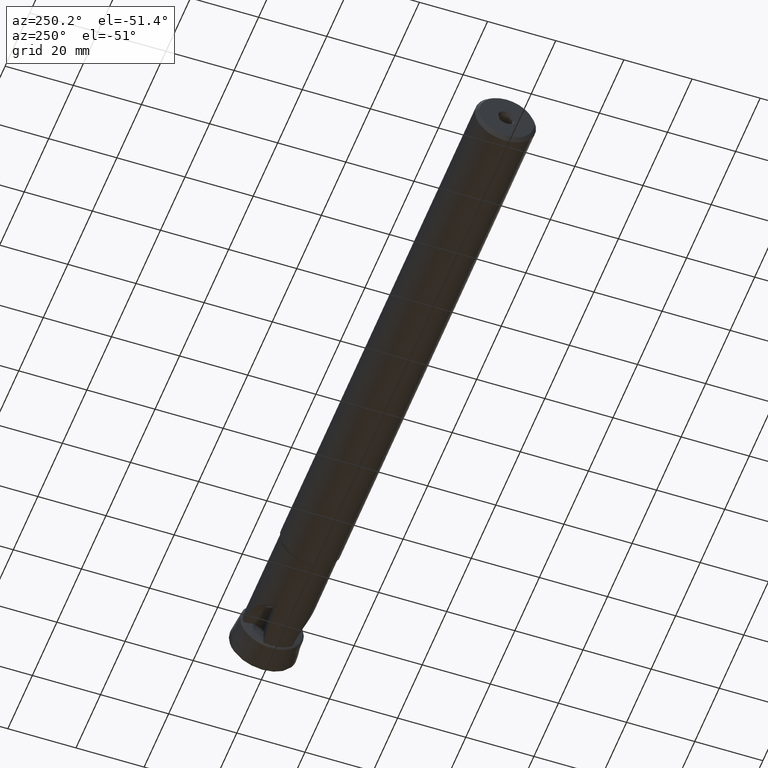
[diagram: clean part render]
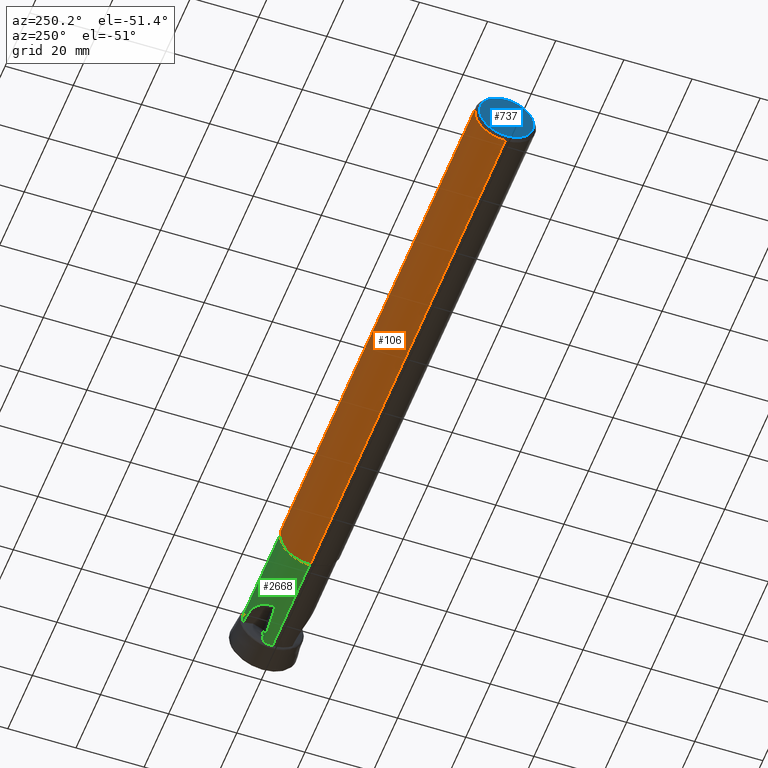
[diagram: same view with three faces highlighted in distinct colors, each labeled with its STEP entity id]
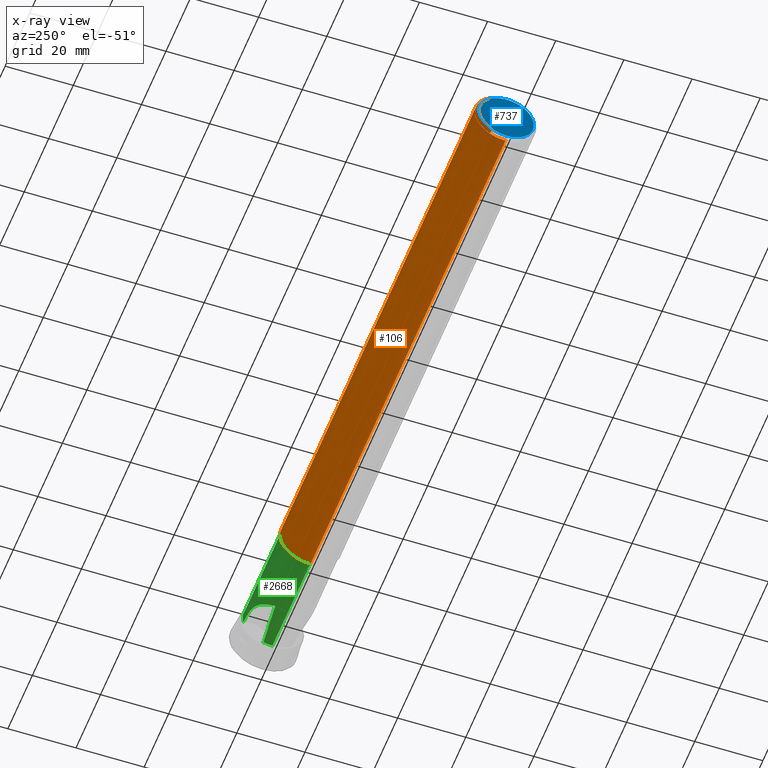
[diagram: x-ray of the same camera — body ghosted, the three highlighted faces saturated]
A machine part, auxiliary view with three faces highlighted in distinct colors.
The next image is the same camera in x-ray (body ghosted, the three faces saturated) — at least one of them is partly hidden behind the body in this view.
Their STEP definitions:

[orange] entity #106 — the highlighted cylindrical surface (edge-blend (fillet) strip) has radius 9 mm, axis along (-1, -0, -0).
#106 = ADVANCED_FACE ( 'NONE', ( #900 ), #4100, .T. ) ;
#266 = CIRCLE ( 'NONE', #432, 9.000000000000000000 ) ;
#290 = VECTOR ( 'NONE', #857, 1000.000000000000000 ) ;
#351 = VERTEX_POINT ( 'NONE', #3531 ) ;
#432 = AXIS2_PLACEMENT_3D ( 'NONE', #3870, #3255, #1993 ) ;
#564 = CARTESIAN_POINT ( 'NONE',  ( 1.000000000000000000, 1.102182119232615500E-015, 8.999999999999982200 ) ) ;
#780 = DIRECTION ( 'NONE',  ( 0.0000000000000000000, 0.0000000000000000000, 1.000000000000000000 ) ) ;
#839 = VECTOR ( 'NONE', #3418, 1000.000000000000000 ) ;
#857 = DIRECTION ( 'NONE',  ( -1.000000000000000000, -0.0000000000000000000, -0.0000000000000000000 ) ) ;
#886 = ORIENTED_EDGE ( 'NONE', *, *, #2553, .T. ) ;
#900 = FACE_OUTER_BOUND ( 'NONE', #3587, .T. ) ;
#1161 = CARTESIAN_POINT ( 'NONE',  ( 0.0000000000000000000, 0.0000000000000000000, 8.999999999999991100 ) ) ;
#1303 = AXIS2_PLACEMENT_3D ( 'NONE', #3076, #3015, #780 ) ;
#1433 = AXIS2_PLACEMENT_3D ( 'NONE', #3495, #1616, #1916 ) ;
#1523 = EDGE_CURVE ( 'NONE', #2541, #3810, #1585, .T. ) ;
#1585 = LINE ( 'NONE', #1161, #290 ) ;
#1616 = DIRECTION ( 'NONE',  ( -1.000000000000000000, -0.0000000000000000000, -0.0000000000000000000 ) ) ;
#1687 = ORIENTED_EDGE ( 'NONE', *, *, #3038, .F. ) ;
#1866 = CARTESIAN_POINT ( 'NONE',  ( 159.8499999999999900, 0.0000000000000000000, 9.000000000000000000 ) ) ;
#1916 = DIRECTION ( 'NONE',  ( 0.0000000000000000000, 0.0000000000000000000, 1.000000000000000000 ) ) ;
#1959 = LINE ( 'NONE', #4080, #839 ) ;
#1968 = VERTEX_POINT ( 'NONE', #4029 ) ;
#1993 = DIRECTION ( 'NONE',  ( 0.0000000000000000000, 0.0000000000000000000, 1.000000000000000000 ) ) ;
#2240 = CIRCLE ( 'NONE', #1433, 8.999999999999982200 ) ;
#2541 = VERTEX_POINT ( 'NONE', #1866 ) ;
#2553 = EDGE_CURVE ( 'NONE', #351, #1968, #1959, .T. ) ;
#3015 = DIRECTION ( 'NONE',  ( -1.000000000000000000, -0.0000000000000000000, -0.0000000000000000000 ) ) ;
#3038 = EDGE_CURVE ( 'NONE', #3810, #1968, #2240, .T. ) ;
#3076 = CARTESIAN_POINT ( 'NONE',  ( 0.0000000000000000000, 0.0000000000000000000, 0.0000000000000000000 ) ) ;
#3118 = EDGE_CURVE ( 'NONE', #2541, #351, #266, .T. ) ;
#3255 = DIRECTION ( 'NONE',  ( -1.000000000000000000, -0.0000000000000000000, -0.0000000000000000000 ) ) ;
#3418 = DIRECTION ( 'NONE',  ( -1.000000000000000000, -0.0000000000000000000, -0.0000000000000000000 ) ) ;
#3495 = CARTESIAN_POINT ( 'NONE',  ( 1.000000000000000000, 0.0000000000000000000, 0.0000000000000000000 ) ) ;
#3531 = CARTESIAN_POINT ( 'NONE',  ( 159.8499999999999900, 1.102182119232617700E-015, -9.000000000000000000 ) ) ;
#3587 = EDGE_LOOP ( 'NONE', ( #3778, #886, #1687, #3975 ) ) ;
#3778 = ORIENTED_EDGE ( 'NONE', *, *, #3118, .T. ) ;
#3810 = VERTEX_POINT ( 'NONE', #564 ) ;
#3870 = CARTESIAN_POINT ( 'NONE',  ( 159.8499999999999900, 0.0000000000000000000, 0.0000000000000000000 ) ) ;
#3975 = ORIENTED_EDGE ( 'NONE', *, *, #1523, .F. ) ;
#4029 = CARTESIAN_POINT ( 'NONE',  ( 1.000000000000000000, 0.0000000000000000000, -8.999999999999982200 ) ) ;
#4080 = CARTESIAN_POINT ( 'NONE',  ( 0.0000000000000000000, 1.102182119232616700E-015, -8.999999999999991100 ) ) ;
#4100 = CYLINDRICAL_SURFACE ( 'NONE', #1303, 8.999999999999991100 ) ;

[blue] entity #737 — the highlighted planar face has unit normal (1, 0, 0).
#36 = ORIENTED_EDGE ( 'NONE', *, *, #873, .T. ) ;
#178 = VERTEX_POINT ( 'NONE', #842 ) ;
#205 = ORIENTED_EDGE ( 'NONE', *, *, #3556, .F. ) ;
#216 = DIRECTION ( 'NONE',  ( -1.000000000000000000, -0.0000000000000000000, -0.0000000000000000000 ) ) ;
#235 = ORIENTED_EDGE ( 'NONE', *, *, #2966, .T. ) ;
#318 = CIRCLE ( 'NONE', #3086, 7.999999999999979600 ) ;
#353 = DIRECTION ( 'NONE',  ( -1.000000000000000000, -0.0000000000000000000, -0.0000000000000000000 ) ) ;
#480 = VERTEX_POINT ( 'NONE', #634 ) ;
#500 = CARTESIAN_POINT ( 'NONE',  ( 0.0000000000000000000, 0.0000000000000000000, 0.0000000000000000000 ) ) ;
#530 = DIRECTION ( 'NONE',  ( 0.0000000000000000000, 0.0000000000000000000, -1.000000000000000000 ) ) ;
#634 = CARTESIAN_POINT ( 'NONE',  ( 0.0000000000000000000, 1.040949779275248000E-015, 7.999999999999979600 ) ) ;
#689 = EDGE_CURVE ( 'NONE', #2187, #2066, #1707, .T. ) ;
#723 = AXIS2_PLACEMENT_3D ( 'NONE', #3072, #1459, #530 ) ;
#737 = ADVANCED_FACE ( 'NONE', ( #3593, #1818 ), #2453, .F. ) ;
#842 = CARTESIAN_POINT ( 'NONE',  ( 0.0000000000000000000, 0.0000000000000000000, -7.999999999999979600 ) ) ;
#846 = CIRCLE ( 'NONE', #1155, 7.999999999999979600 ) ;
#873 = EDGE_CURVE ( 'NONE', #480, #178, #846, .T. ) ;
#948 = CIRCLE ( 'NONE', #2030, 2.577350269189627500 ) ;
#966 = CARTESIAN_POINT ( 'NONE',  ( 0.0000000000000000000, 0.0000000000000000000, 0.0000000000000000000 ) ) ;
#987 = CARTESIAN_POINT ( 'NONE',  ( 0.0000000000000000000, 3.156343757444646200E-016, -2.577350269189627500 ) ) ;
#1155 = AXIS2_PLACEMENT_3D ( 'NONE', #500, #216, #2125 ) ;
#1459 = DIRECTION ( 'NONE',  ( 1.000000000000000000, 0.0000000000000000000, 0.0000000000000000000 ) ) ;
#1707 = CIRCLE ( 'NONE', #3168, 2.577350269189627500 ) ;
#1818 = FACE_OUTER_BOUND ( 'NONE', #2687, .T. ) ;
#1917 = EDGE_LOOP ( 'NONE', ( #205, #2059 ) ) ;
#2030 = AXIS2_PLACEMENT_3D ( 'NONE', #3449, #3474, #4119 ) ;
#2059 = ORIENTED_EDGE ( 'NONE', *, *, #689, .F. ) ;
#2066 = VERTEX_POINT ( 'NONE', #3885 ) ;
#2125 = DIRECTION ( 'NONE',  ( 0.0000000000000000000, 0.0000000000000000000, 1.000000000000000000 ) ) ;
#2187 = VERTEX_POINT ( 'NONE', #987 ) ;
#2258 = DIRECTION ( 'NONE',  ( -1.000000000000000000, -0.0000000000000000000, -0.0000000000000000000 ) ) ;
#2453 = PLANE ( 'NONE',  #723 ) ;
#2687 = EDGE_LOOP ( 'NONE', ( #235, #36 ) ) ;
#2958 = DIRECTION ( 'NONE',  ( 0.0000000000000000000, 0.0000000000000000000, 1.000000000000000000 ) ) ;
#2966 = EDGE_CURVE ( 'NONE', #178, #480, #318, .T. ) ;
#3072 = CARTESIAN_POINT ( 'NONE',  ( 0.0000000000000000000, 0.0000000000000000000, 0.0000000000000000000 ) ) ;
#3086 = AXIS2_PLACEMENT_3D ( 'NONE', #4114, #2258, #3159 ) ;
#3159 = DIRECTION ( 'NONE',  ( 0.0000000000000000000, 0.0000000000000000000, 1.000000000000000000 ) ) ;
#3168 = AXIS2_PLACEMENT_3D ( 'NONE', #966, #353, #2958 ) ;
#3449 = CARTESIAN_POINT ( 'NONE',  ( 0.0000000000000000000, 0.0000000000000000000, 0.0000000000000000000 ) ) ;
#3474 = DIRECTION ( 'NONE',  ( -1.000000000000000000, -0.0000000000000000000, -0.0000000000000000000 ) ) ;
#3556 = EDGE_CURVE ( 'NONE', #2066, #2187, #948, .T. ) ;
#3593 = FACE_BOUND ( 'NONE', #1917, .T. ) ;
#3885 = CARTESIAN_POINT ( 'NONE',  ( 0.0000000000000000000, 0.0000000000000000000, 2.577350269189627500 ) ) ;
#4114 = CARTESIAN_POINT ( 'NONE',  ( 0.0000000000000000000, 0.0000000000000000000, 0.0000000000000000000 ) ) ;
#4119 = DIRECTION ( 'NONE',  ( 0.0000000000000000000, 0.0000000000000000000, 1.000000000000000000 ) ) ;

[green] entity #2668 — the highlighted cylindrical surface (edge-blend (fillet) strip) has radius 8.7 mm, axis along (-1, -0, -0).
#31 = EDGE_CURVE ( 'NONE', #3318, #1858, #154, .T. ) ;
#48 = CARTESIAN_POINT ( 'NONE',  ( 186.5458879571293400, 5.526482663452587700, 6.731330822039865300 ) ) ;
#154 = LINE ( 'NONE', #3620, #2184 ) ;
#162 = ORIENTED_EDGE ( 'NONE', *, *, #3369, .F. ) ;
#167 = CARTESIAN_POINT ( 'NONE',  ( 190.7222206241556000, 7.661094527793737000, 4.122818288041429500 ) ) ;
#182 = CARTESIAN_POINT ( 'NONE',  ( 190.8481881192024600, 7.474472977411254600, 4.452218964735330100 ) ) ;
#193 = CARTESIAN_POINT ( 'NONE',  ( 190.9211409508615400, 8.164377986704879600, 3.005483719200534100 ) ) ;
#202 = CARTESIAN_POINT ( 'NONE',  ( 190.7198797844603500, 7.648194998935660600, 4.146788422799097000 ) ) ;
#221 = CARTESIAN_POINT ( 'NONE',  ( 178.3320386271452900, 4.445625133347662400, 7.496302665972181400 ) ) ;
#237 = CARTESIAN_POINT ( 'NONE',  ( 180.4909169085697200, 1.452664255402215300, 8.586486216077188900 ) ) ;
#277 = CARTESIAN_POINT ( 'NONE',  ( 178.5742942595393000, 4.010620113852957600, 7.735151988528822500 ) ) ;
#311 = CARTESIAN_POINT ( 'NONE',  ( 187.6116467197903100, 8.434935837233647100, -2.137243799920089100 ) ) ;
#313 = EDGE_CURVE ( 'NONE', #3239, #2751, #2139, .T. ) ;
#335 = CARTESIAN_POINT ( 'NONE',  ( 190.8663907642590200, 0.1388722106025402600, -8.698915431529711000 ) ) ;
#346 = CARTESIAN_POINT ( 'NONE',  ( 185.6927024014679000, 8.292120856077428200, -2.644594771626552100 ) ) ;
#350 = AXIS2_PLACEMENT_3D ( 'NONE', #3082, #2422, #3055 ) ;
#369 = CARTESIAN_POINT ( 'NONE',  ( 190.9334004331780100, 0.0000000000000000000, 0.0000000000000000000 ) ) ;
#445 = CARTESIAN_POINT ( 'NONE',  ( 186.5458879571292800, 3.066262161437383100, -8.151739791144171600 ) ) ;
#453 = CARTESIAN_POINT ( 'NONE',  ( 190.9334004331788300, 7.828025919670068300, 3.796315345301754200 ) ) ;
#473 = CARTESIAN_POINT ( 'NONE',  ( 178.1196443445707900, 3.803462953643983000, -7.824555550333685400 ) ) ;
#483 = CARTESIAN_POINT ( 'NONE',  ( 190.8163197487449500, 7.777929829819878000, 3.897990750167128000 ) ) ;
#489 = DIRECTION ( 'NONE',  ( 1.000000000000000000, 0.0000000000000000000, 0.0000000000000000000 ) ) ;
#499 = CARTESIAN_POINT ( 'NONE',  ( 190.7606320684753000, 7.544122279456184200, 4.333153474389393800 ) ) ;
#513 = CARTESIAN_POINT ( 'NONE',  ( 190.7515286362785200, 7.723401831865232700, 4.004958251191442100 ) ) ;
#516 = B_SPLINE_CURVE_WITH_KNOTS ( 'NONE', 3,
 ( #453, #3643, #3713, #1112, #3394, #4005, #819, #1759, #483, #787, #1819, #1137, #2435, #513, #3363, #2111, #2735, #1096, #167, #202, #2419, #3034, #1126, #3067, #2764, #1441, #832, #499, #3335, #3688, #1795, #4020, #3347, #182, #2748, #1419, #3081, #1454, #3702, #3658 ),
 .UNSPECIFIED., .F., .F.,
 ( 4, 3, 3, 3, 3, 3, 3, 3, 3, 3, 3, 3, 3, 4 ),
 ( 0.0003847628535540703300, 0.0004114584794303379500, 0.0004934319040602113600, 0.0005754021262755836600, 0.0006573683344470382900, 0.0007393305208307464300, 0.0008212893532445864700, 0.0009032459673838952100, 0.0009852017346433281600, 0.001067158032012041600, 0.001149116022781263100, 0.001231076457913295000, 0.001313039524460751500, 0.001345262288692896300 ),
 .UNSPECIFIED. ) ;
#518 = CARTESIAN_POINT ( 'NONE',  ( 0.0000000000000000000, 1.065442715258197200E-015, -8.699999999999999300 ) ) ;
#526 = ORIENTED_EDGE ( 'NONE', *, *, #2858, .T. ) ;
#551 = VECTOR ( 'NONE', #2754, 1000.000000000000000 ) ;
#597 = EDGE_CURVE ( 'NONE', #1472, #3359, #1060, .T. ) ;
#602 = CARTESIAN_POINT ( 'NONE',  ( 179.4434086067041700, 2.707270651571116500, 8.271253161361787700 ) ) ;
#620 = CARTESIAN_POINT ( 'NONE',  ( 190.8134022669487100, 0.07618259288127718400, -8.699697027856244000 ) ) ;
#630 = CARTESIAN_POINT ( 'NONE',  ( 180.4294679809814900, 6.656135577601196100, -5.607882552085927200 ) ) ;
#654 = DIRECTION ( 'NONE',  ( 1.000000000000000000, 0.0000000000000000000, 0.0000000000000000000 ) ) ;
#655 = VERTEX_POINT ( 'NONE', #888 ) ;
#675 = CARTESIAN_POINT ( 'NONE',  ( 179.9908264697016900, 6.323160247328727800, -5.980813659695470200 ) ) ;
#751 = ORIENTED_EDGE ( 'NONE', *, *, #597, .T. ) ;
#767 = AXIS2_PLACEMENT_3D ( 'NONE', #1000, #1019, #2010 ) ;
#774 = CARTESIAN_POINT ( 'NONE',  ( 182.1612330634172000, -1.359809758541708100E-014, 8.699999999999999300 ) ) ;
#787 = CARTESIAN_POINT ( 'NONE',  ( 190.8014110715884000, 7.767616614690019200, 3.918434907867113500 ) ) ;
#791 = EDGE_CURVE ( 'NONE', #3239, #3318, #2326, .T. ) ;
#806 = EDGE_CURVE ( 'NONE', #2389, #1742, #3049, .T. ) ;
#819 = CARTESIAN_POINT ( 'NONE',  ( 190.8516506979230200, 7.796573835666876600, 3.860496914257888900 ) ) ;
#832 = CARTESIAN_POINT ( 'NONE',  ( 190.7499339922304700, 7.556643310218306400, 4.311354064861765400 ) ) ;
#875 = CARTESIAN_POINT ( 'NONE',  ( 190.7780985016718500, 0.01826323806955693800, -8.699999999999999300 ) ) ;
#888 = CARTESIAN_POINT ( 'NONE',  ( 190.9334004331788300, 7.828025919670068300, 3.796315345301754200 ) ) ;
#911 = CARTESIAN_POINT ( 'NONE',  ( 190.7987626164870700, 0.05311434383688907300, -8.699837864378782400 ) ) ;
#912 = CARTESIAN_POINT ( 'NONE',  ( 190.9150110608191500, 8.164189951183400900, 3.005994417991469700 ) ) ;
#937 = CARTESIAN_POINT ( 'NONE',  ( 190.9076216286660200, 0.1749372352072400500, -8.698241026997237700 ) ) ;
#938 = CARTESIAN_POINT ( 'NONE',  ( 160.3696152422706400, 1.065442715258197200E-015, -8.699999999999999300 ) ) ;
#941 = CARTESIAN_POINT ( 'NONE',  ( 190.9273419289813200, 8.125336072768828200, 3.109983053027790800 ) ) ;
#962 = CARTESIAN_POINT ( 'NONE',  ( 190.9334004331780400, 8.496544990634079800, -1.870487429022438500 ) ) ;
#981 = DIRECTION ( 'NONE',  ( 1.000000000000000000, 0.0000000000000000000, 0.0000000000000000000 ) ) ;
#990 = CARTESIAN_POINT ( 'NONE',  ( 182.1668512313075600, 7.556362601018921800, -4.332613102933631700 ) ) ;
#1000 = CARTESIAN_POINT ( 'NONE',  ( 190.9334004331780100, 0.0000000000000000000, 0.0000000000000000000 ) ) ;
#1014 = CIRCLE ( 'NONE', #350, 8.699999999999999300 ) ;
#1019 = DIRECTION ( 'NONE',  ( 1.000000000000000000, 0.0000000000000000000, 0.0000000000000000000 ) ) ;
#1054 = ORIENTED_EDGE ( 'NONE', *, *, #3084, .F. ) ;
#1060 =( BOUNDED_CURVE ( )  B_SPLINE_CURVE ( 3, ( #2427, #193, #2773, #3375 ),
 .UNSPECIFIED., .F., .F. ) 
 B_SPLINE_CURVE_WITH_KNOTS ( ( 4, 4 ),
 ( 1.741605869199324800, 1.741793529748593100 ),
 .UNSPECIFIED. ) 
 CURVE ( )  GEOMETRIC_REPRESENTATION_ITEM ( )  RATIONAL_B_SPLINE_CURVE ( ( 1.000000000000000000, 0.9999999970652930800, 0.9999999970652930800, 1.000000000000000000 ) ) 
 REPRESENTATION_ITEM ( '' )  );
#1088 = CARTESIAN_POINT ( 'NONE',  ( 178.3752065602197100, 4.363829506541814700, -7.552165200402948900 ) ) ;
#1096 = CARTESIAN_POINT ( 'NONE',  ( 190.7245615032404900, 7.673994273713970100, 4.098847749934988900 ) ) ;
#1101 = EDGE_CURVE ( 'NONE', #3564, #2751, #1233, .T. ) ;
#1112 = CARTESIAN_POINT ( 'NONE',  ( 190.9118815980674000, 7.821088288845937000, 3.810587615850987000 ) ) ;
#1126 = CARTESIAN_POINT ( 'NONE',  ( 190.7239603618604100, 7.608779792574567900, 4.218674210201572600 ) ) ;
#1137 = CARTESIAN_POINT ( 'NONE',  ( 190.7734430515115500, 7.746317824939971800, 3.960452832980855000 ) ) ;
#1140 = ORIENTED_EDGE ( 'NONE', *, *, #806, .F. ) ;
#1192 = CARTESIAN_POINT ( 'NONE',  ( 190.9334004331780400, 7.435373718682393800, 4.517213484386928700 ) ) ;
#1197 = DIRECTION ( 'NONE',  ( 1.000000000000000000, 0.0000000000000000000, 0.0000000000000000000 ) ) ;
#1204 = CARTESIAN_POINT ( 'NONE',  ( 178.9874049805816000, 3.358169900556701800, 8.029296819449124100 ) ) ;
#1216 = CARTESIAN_POINT ( 'NONE',  ( 190.9334004331780100, 2.682404558704563100, -8.276152837124323400 ) ) ;
#1233 = CIRCLE ( 'NONE', #3863, 8.699999999999999300 ) ;
#1267 = CARTESIAN_POINT ( 'NONE',  ( 186.3249450176070600, 8.350028003544128600, -2.448057592985557500 ) ) ;
#1269 = EDGE_CURVE ( 'NONE', #1742, #1641, #1703, .T. ) ;
#1354 = CARTESIAN_POINT ( 'NONE',  ( 190.8481881192022600, 0.1184982379657667900, -8.699192960706122700 ) ) ;
#1419 = CARTESIAN_POINT ( 'NONE',  ( 190.8863338666577900, 7.454289232737043100, 4.485963149420618000 ) ) ;
#1441 = CARTESIAN_POINT ( 'NONE',  ( 190.7412597237242000, 7.569546247198901200, 4.288668094566257400 ) ) ;
#1449 = ORIENTED_EDGE ( 'NONE', *, *, #2780, .F. ) ;
#1454 = CARTESIAN_POINT ( 'NONE',  ( 190.9160010047963300, 7.441941510388313800, 4.506390130308694200 ) ) ;
#1472 = VERTEX_POINT ( 'NONE', #3030 ) ;
#1527 = CARTESIAN_POINT ( 'NONE',  ( 180.1214540693519800, 1.856396745797082700, 8.510911957219843100 ) ) ;
#1537 = CARTESIAN_POINT ( 'NONE',  ( 190.9334004331780400, 8.496544990634079800, -1.870487429022438500 ) ) ;
#1548 = ORIENTED_EDGE ( 'NONE', *, *, #4105, .T. ) ;
#1581 = CIRCLE ( 'NONE', #2986, 8.699999999999999300 ) ;
#1601 = CARTESIAN_POINT ( 'NONE',  ( 182.2677474272773000, 5.208763110056278100, 6.980086828149255900 ) ) ;
#1613 = CIRCLE ( 'NONE', #767, 8.699999999999999300 ) ;
#1641 = VERTEX_POINT ( 'NONE', #1216 ) ;
#1703 = CIRCLE ( 'NONE', #2251, 8.699999999999999300 ) ;
#1715 = CARTESIAN_POINT ( 'NONE',  ( 179.3825426530702600, 5.747428824800036500, -6.536830240611012100 ) ) ;
#1742 = VERTEX_POINT ( 'NONE', #3476 ) ;
#1759 = CARTESIAN_POINT ( 'NONE',  ( 190.8331780349186000, 7.787639918519732700, 3.878539654927409200 ) ) ;
#1769 = CARTESIAN_POINT ( 'NONE',  ( 190.9334004331780100, 0.0000000000000000000, 0.0000000000000000000 ) ) ;
#1795 = CARTESIAN_POINT ( 'NONE',  ( 190.7987626164872100, 7.507723427439195500, 4.395917303257721000 ) ) ;
#1802 = ORIENTED_EDGE ( 'NONE', *, *, #31, .F. ) ;
#1819 = CARTESIAN_POINT ( 'NONE',  ( 190.7865028282776100, 7.757303699676946000, 3.938878470637698000 ) ) ;
#1837 = CARTESIAN_POINT ( 'NONE',  ( 178.1196443445709300, 4.874532403089479400, 7.206173315375537800 ) ) ;
#1842 = ORIENTED_EDGE ( 'NONE', *, *, #2583, .F. ) ;
#1858 = VERTEX_POINT ( 'NONE', #2371 ) ;
#1898 = CARTESIAN_POINT ( 'NONE',  ( 181.7158837474118500, 0.3275458367340836100, 8.700000000000002800 ) ) ;
#1941 = EDGE_CURVE ( 'NONE', #655, #3564, #516, .T. ) ;
#1949 = FACE_OUTER_BOUND ( 'NONE', #3281, .T. ) ;
#1954 = CARTESIAN_POINT ( 'NONE',  ( 181.3887864847493200, 7.213141766917433800, -4.868842148272897900 ) ) ;
#2010 = DIRECTION ( 'NONE',  ( 0.0000000000000000000, 0.0000000000000000000, 1.000000000000000000 ) ) ;
#2055 = CARTESIAN_POINT ( 'NONE',  ( 190.9334004331780100, 2.682404558704563100, -8.276152837124323400 ) ) ;
#2068 = ORIENTED_EDGE ( 'NONE', *, *, #1269, .F. ) ;
#2096 = B_SPLINE_CURVE_WITH_KNOTS ( 'NONE', 3,
 ( #473, #1088, #3981, #3341, #1715, #3947, #675, #630, #2578, #3838, #1954, #990, #3851, #2882, #3190, #346, #1267, #311, #3824, #2902, #3541, #962 ),
 .UNSPECIFIED., .F., .F.,
 ( 4, 2, 2, 2, 2, 2, 2, 2, 2, 2, 4 ),
 ( 3.952924399303698100E-017, 0.001988008484168205400, 0.002982012726252290100, 0.003976016968336375200, 0.004970021210420459500, 0.005964025452504545500, 0.007952033936672780000, 0.009940042420841014400, 0.01192805090500924900, 0.01391605938917748000, 0.01590406787334571300 ),
 .UNSPECIFIED. ) ;
#2111 = CARTESIAN_POINT ( 'NONE',  ( 190.7358695479988700, 7.699063289538055500, 4.051471888547102800 ) ) ;
#2139 =( BOUNDED_CURVE ( )  B_SPLINE_CURVE ( 3, ( #2627, #1601, #48, #2600 ),
 .UNSPECIFIED., .F., .T. ) 
 B_SPLINE_CURVE_WITH_KNOTS ( ( 4, 4 ),
 ( 1.118335955188411300, 1.257367353434170500 ),
 .UNSPECIFIED. ) 
 CURVE ( )  GEOMETRIC_REPRESENTATION_ITEM ( )  RATIONAL_B_SPLINE_CURVE ( ( 1.000000000000000000, 0.9983898377652034000, 0.9983898377652034000, 1.000000000000000000 ) ) 
 REPRESENTATION_ITEM ( '' )  );
#2174 = CARTESIAN_POINT ( 'NONE',  ( 179.1334385962737500, 3.140689477749754900, 8.116588744327730300 ) ) ;
#2180 = VERTEX_POINT ( 'NONE', #3573 ) ;
#2184 = VECTOR ( 'NONE', #3636, 1000.000000000000000 ) ;
#2190 = DIRECTION ( 'NONE',  ( 0.0000000000000000000, 0.0000000000000000000, 1.000000000000000000 ) ) ;
#2215 = CARTESIAN_POINT ( 'NONE',  ( 190.9334004331775200, 8.105164566431392700, 3.161693747187507100 ) ) ;
#2251 = AXIS2_PLACEMENT_3D ( 'NONE', #369, #981, #3512 ) ;
#2256 = CARTESIAN_POINT ( 'NONE',  ( 190.9246028625583200, 0.1881502606606946500, -8.697967449162657500 ) ) ;
#2290 = ORIENTED_EDGE ( 'NONE', *, *, #2467, .T. ) ;
#2326 = B_SPLINE_CURVE_WITH_KNOTS ( 'NONE', 3,
 ( #1837, #221, #277, #1204, #2174, #602, #3452, #1527, #237, #3799, #1898, #3773 ),
 .UNSPECIFIED., .F., .F.,
 ( 4, 2, 2, 2, 2, 4 ),
 ( 4.135232934222929700E-017, 0.001652206820459828600, 0.002478310230689701800, 0.003304413640919575200, 0.004956620461379373200, 0.006608827281839171200 ),
 .UNSPECIFIED. ) ;
#2328 = ORIENTED_EDGE ( 'NONE', *, *, #313, .T. ) ;
#2371 = CARTESIAN_POINT ( 'NONE',  ( 160.3696152422706400, 0.0000000000000000000, 8.699999999999999300 ) ) ;
#2389 = VERTEX_POINT ( 'NONE', #3693 ) ;
#2396 = CARTESIAN_POINT ( 'NONE',  ( 190.9334004331775200, 8.105164566431392700, 3.161693747187507100 ) ) ;
#2399 =( BOUNDED_CURVE ( )  B_SPLINE_CURVE ( 3, ( #2969, #3915, #445, #2055 ),
 .UNSPECIFIED., .F., .T. ) 
 B_SPLINE_CURVE_WITH_KNOTS ( ( 4, 4 ),
 ( 1.118335955188410400, 1.257367353434170500 ),
 .UNSPECIFIED. ) 
 CURVE ( )  GEOMETRIC_REPRESENTATION_ITEM ( )  RATIONAL_B_SPLINE_CURVE ( ( 1.000000000000000000, 0.9983898377652034000, 0.9983898377652034000, 1.000000000000000000 ) ) 
 REPRESENTATION_ITEM ( '' )  );
#2402 = CARTESIAN_POINT ( 'NONE',  ( 190.9334004331780100, 5.826156323200007300, 6.461106909627528900 ) ) ;
#2419 = CARTESIAN_POINT ( 'NONE',  ( 190.7197599831859800, 7.635048178246095500, 4.170944898913308700 ) ) ;
#2422 = DIRECTION ( 'NONE',  ( -1.000000000000000000, -0.0000000000000000000, -0.0000000000000000000 ) ) ;
#2427 = CARTESIAN_POINT ( 'NONE',  ( 190.9150110608191500, 8.164189951183400900, 3.005994417991469700 ) ) ;
#2435 = CARTESIAN_POINT ( 'NONE',  ( 190.7624856820947100, 7.734859659207322700, 3.982705870682281100 ) ) ;
#2467 = EDGE_CURVE ( 'NONE', #2389, #3079, #3286, .T. ) ;
#2480 = ORIENTED_EDGE ( 'NONE', *, *, #3054, .F. ) ;
#2492 = CARTESIAN_POINT ( 'NONE',  ( 190.7693955570472000, -5.149960319306146100E-016, -8.699999999999999300 ) ) ;
#2556 = DIRECTION ( 'NONE',  ( 0.0000000000000000000, 1.421085471520200400E-014, 1.000000000000000000 ) ) ;
#2578 = CARTESIAN_POINT ( 'NONE',  ( 180.6588068533687000, 6.808143468948920000, -5.421496950432206100 ) ) ;
#2583 = EDGE_CURVE ( 'NONE', #3606, #2180, #1581, .T. ) ;
#2586 = CARTESIAN_POINT ( 'NONE',  ( 190.9334004331780400, 0.1943347724554442800, -8.697829269203589700 ) ) ;
#2600 = CARTESIAN_POINT ( 'NONE',  ( 190.9334004331780100, 5.826156323200007300, 6.461106909627528900 ) ) ;
#2614 = ORIENTED_EDGE ( 'NONE', *, *, #1941, .F. ) ;
#2627 = CARTESIAN_POINT ( 'NONE',  ( 178.1196443445709300, 4.874532403089479400, 7.206173315375537800 ) ) ;
#2655 = ORIENTED_EDGE ( 'NONE', *, *, #791, .F. ) ;
#2668 = ADVANCED_FACE ( 'NONE', ( #1949 ), #3029, .T. ) ;
#2705 = CARTESIAN_POINT ( 'NONE',  ( 190.9334004331780100, 8.164753913986654500, 3.004462268699615600 ) ) ;
#2735 = CARTESIAN_POINT ( 'NONE',  ( 190.7291391324771200, 7.686732080421795600, 4.074905041246741400 ) ) ;
#2748 = CARTESIAN_POINT ( 'NONE',  ( 190.8663907642592200, 7.464045643775805600, 4.469724578026576200 ) ) ;
#2751 = VERTEX_POINT ( 'NONE', #2402 ) ;
#2754 = DIRECTION ( 'NONE',  ( -1.000000000000000000, -0.0000000000000000000, -0.0000000000000000000 ) ) ;
#2764 = CARTESIAN_POINT ( 'NONE',  ( 190.7347770183569100, 7.582558974282615200, 4.265536238449528600 ) ) ;
#2773 = CARTESIAN_POINT ( 'NONE',  ( 190.9272707416658400, 8.164565974306510700, 3.004973002768418500 ) ) ;
#2780 = EDGE_CURVE ( 'NONE', #4120, #3606, #2096, .T. ) ;
#2822 =( BOUNDED_CURVE ( )  B_SPLINE_CURVE ( 3, ( #2215, #941, #2842, #912 ),
 .UNSPECIFIED., .F., .T. ) 
 B_SPLINE_CURVE_WITH_KNOTS ( ( 4, 4 ),
 ( 3.821217165952917500, 3.840356779138673500 ),
 .UNSPECIFIED. ) 
 CURVE ( )  GEOMETRIC_REPRESENTATION_ITEM ( )  RATIONAL_B_SPLINE_CURVE ( ( 1.000000000000000000, 0.9999694731668996600, 0.9999694731668996600, 1.000000000000000000 ) ) 
 REPRESENTATION_ITEM ( '' )  );
#2842 = CARTESIAN_POINT ( 'NONE',  ( 190.9212119510662000, 8.145011801656114200, 3.058081692244512000 ) ) ;
#2858 = EDGE_CURVE ( 'NONE', #3748, #1472, #2822, .T. ) ;
#2882 = CARTESIAN_POINT ( 'NONE',  ( 183.8539102516582500, 8.018322874687996200, -3.392454692484524700 ) ) ;
#2902 = CARTESIAN_POINT ( 'NONE',  ( 189.5974730823005800, 8.494662398255892200, -1.880440102764140200 ) ) ;
#2969 = CARTESIAN_POINT ( 'NONE',  ( 178.1196443445707900, 3.803462953643983000, -7.824555550333685400 ) ) ;
#2986 = AXIS2_PLACEMENT_3D ( 'NONE', #4092, #1197, #2190 ) ;
#3029 = CYLINDRICAL_SURFACE ( 'NONE', #3707, 8.699999999999999300 ) ;
#3030 = CARTESIAN_POINT ( 'NONE',  ( 190.9150110608191500, 8.164189951183400900, 3.005994417991469700 ) ) ;
#3034 = CARTESIAN_POINT ( 'NONE',  ( 190.7218601797398500, 7.621913940278727900, 4.194809636560970400 ) ) ;
#3049 = B_SPLINE_CURVE_WITH_KNOTS ( 'NONE', 3,
 ( #2492, #875, #3144, #911, #620, #3924, #1354, #335, #3816, #937, #3185, #2256, #2586 ),
 .UNSPECIFIED., .F., .F.,
 ( 4, 3, 3, 3, 4 ),
 ( 0.001088441668297376500, 0.001149116022781128500, 0.001231076457913151400, 0.001313039524460582600, 0.001345262288693040900 ),
 .UNSPECIFIED. ) ;
#3054 = EDGE_CURVE ( 'NONE', #3748, #655, #3720, .T. ) ;
#3055 = DIRECTION ( 'NONE',  ( 0.0000000000000000000, 0.0000000000000000000, 1.000000000000000000 ) ) ;
#3067 = CARTESIAN_POINT ( 'NONE',  ( 190.7282943339485300, 7.595571659295586600, 4.242404457119151000 ) ) ;
#3079 = VERTEX_POINT ( 'NONE', #938 ) ;
#3081 = CARTESIAN_POINT ( 'NONE',  ( 190.9076216286662500, 7.445429080015914600, 4.500620603256106900 ) ) ;
#3082 = CARTESIAN_POINT ( 'NONE',  ( 160.3696152422706400, 0.0000000000000000000, 0.0000000000000000000 ) ) ;
#3084 = EDGE_CURVE ( 'NONE', #2180, #3359, #1613, .T. ) ;
#3144 = CARTESIAN_POINT ( 'NONE',  ( 190.7879224815378900, 0.03603313460052846200, -8.699942148761396200 ) ) ;
#3185 = CARTESIAN_POINT ( 'NONE',  ( 190.9160010047961600, 0.1816775770164748800, -8.698105466628561500 ) ) ;
#3190 = CARTESIAN_POINT ( 'NONE',  ( 184.4515651951059000, 8.125646903465522500, -3.118815832669484100 ) ) ;
#3238 = DIRECTION ( 'NONE',  ( -1.000000000000000000, -0.0000000000000000000, -0.0000000000000000000 ) ) ;
#3239 = VERTEX_POINT ( 'NONE', #3547 ) ;
#3262 = CARTESIAN_POINT ( 'NONE',  ( 178.1196443445707900, 3.803462953643983000, -7.824555550333685400 ) ) ;
#3281 = EDGE_LOOP ( 'NONE', ( #1140, #2290, #162, #1802, #2655, #2328, #3633, #2614, #2480, #526, #751, #1054, #1842, #1449, #1548, #2068 ) ) ;
#3286 = LINE ( 'NONE', #518, #551 ) ;
#3318 = VERTEX_POINT ( 'NONE', #774 ) ;
#3335 = CARTESIAN_POINT ( 'NONE',  ( 190.7713302718073300, 7.531601099951134700, 4.354953142881962300 ) ) ;
#3341 = CARTESIAN_POINT ( 'NONE',  ( 179.1957630471272000, 5.536350530283716200, -6.717052992594440200 ) ) ;
#3347 = CARTESIAN_POINT ( 'NONE',  ( 190.8299858247359900, 7.484900110212048000, 4.434713688609261500 ) ) ;
#3359 = VERTEX_POINT ( 'NONE', #2705 ) ;
#3363 = CARTESIAN_POINT ( 'NONE',  ( 190.7426001314112200, 7.711394806257061400, 4.028038151306077500 ) ) ;
#3369 = EDGE_CURVE ( 'NONE', #1858, #3079, #1014, .T. ) ;
#3375 = CARTESIAN_POINT ( 'NONE',  ( 190.9334004331780100, 8.164753913986654500, 3.004462268699615600 ) ) ;
#3394 = CARTESIAN_POINT ( 'NONE',  ( 190.8903372764384300, 7.813726904069733700, 3.825696582253796500 ) ) ;
#3452 = CARTESIAN_POINT ( 'NONE',  ( 179.6081457838072300, 2.490431644231637900, 8.338807350619637400 ) ) ;
#3476 = CARTESIAN_POINT ( 'NONE',  ( 190.9334004331780400, 0.1943347724554442800, -8.697829269203589700 ) ) ;
#3512 = DIRECTION ( 'NONE',  ( 0.0000000000000000000, 0.0000000000000000000, 1.000000000000000000 ) ) ;
#3518 = CARTESIAN_POINT ( 'NONE',  ( 190.9334004331780100, 0.0000000000000000000, 0.0000000000000000000 ) ) ;
#3541 = CARTESIAN_POINT ( 'NONE',  ( 190.2649092768991700, 8.500328453957894900, -1.853301338459923500 ) ) ;
#3547 = CARTESIAN_POINT ( 'NONE',  ( 178.1196443445709300, 4.874532403089479400, 7.206173315375537800 ) ) ;
#3557 = DIRECTION ( 'NONE',  ( 0.0000000000000000000, 0.0000000000000000000, 1.000000000000000000 ) ) ;
#3564 = VERTEX_POINT ( 'NONE', #1192 ) ;
#3573 = CARTESIAN_POINT ( 'NONE',  ( 190.9334004331780100, 8.699999999999999300, 0.0000000000000000000 ) ) ;
#3606 = VERTEX_POINT ( 'NONE', #1537 ) ;
#3620 = CARTESIAN_POINT ( 'NONE',  ( 0.0000000000000000000, 0.0000000000000000000, 8.699999999999999300 ) ) ;
#3633 = ORIENTED_EDGE ( 'NONE', *, *, #1101, .F. ) ;
#3636 = DIRECTION ( 'NONE',  ( -1.000000000000000000, -0.0000000000000000000, -0.0000000000000000000 ) ) ;
#3643 = CARTESIAN_POINT ( 'NONE',  ( 190.9260869110835300, 7.825803298522767900, 3.800898403969997100 ) ) ;
#3658 = CARTESIAN_POINT ( 'NONE',  ( 190.9334004331780400, 7.435373718682393800, 4.517213484386928700 ) ) ;
#3680 = DIRECTION ( 'NONE',  ( 0.0000000000000000000, -1.065814103640150300E-014, 1.000000000000000000 ) ) ;
#3688 = CARTESIAN_POINT ( 'NONE',  ( 190.7841232236974900, 7.519379314809209600, 4.376010382212915500 ) ) ;
#3693 = CARTESIAN_POINT ( 'NONE',  ( 190.7693955570472000, -5.149960319306146100E-016, -8.699999999999999300 ) ) ;
#3702 = CARTESIAN_POINT ( 'NONE',  ( 190.9246028625584000, 7.438585641934594200, 4.511926630042240500 ) ) ;
#3707 = AXIS2_PLACEMENT_3D ( 'NONE', #3896, #3238, #3557 ) ;
#3713 = CARTESIAN_POINT ( 'NONE',  ( 190.9189087356871000, 7.823489360682160900, 3.805659505881581000 ) ) ;
#3720 = CIRCLE ( 'NONE', #4013, 8.699999999999999300 ) ;
#3748 = VERTEX_POINT ( 'NONE', #2396 ) ;
#3773 = CARTESIAN_POINT ( 'NONE',  ( 182.1612330634172000, -1.359809758541708100E-014, 8.699999999999999300 ) ) ;
#3799 = CARTESIAN_POINT ( 'NONE',  ( 181.2865512025817100, 0.6891544228332873200, 8.681189155829752500 ) ) ;
#3816 = CARTESIAN_POINT ( 'NONE',  ( 190.8863338666575700, 0.1578134314703361600, -8.698585417417401500 ) ) ;
#3824 = CARTESIAN_POINT ( 'NONE',  ( 188.2661000849878700, 8.461863246191175100, -2.022922302804801100 ) ) ;
#3838 = CARTESIAN_POINT ( 'NONE',  ( 181.1380321978888900, 7.086463344666109200, -5.052275125331276800 ) ) ;
#3851 = CARTESIAN_POINT ( 'NONE',  ( 182.7121545031572500, 7.733674426584119700, -3.999066194363858400 ) ) ;
#3863 = AXIS2_PLACEMENT_3D ( 'NONE', #1769, #489, #3680 ) ;
#3896 = CARTESIAN_POINT ( 'NONE',  ( 0.0000000000000000000, 0.0000000000000000000, 0.0000000000000000000 ) ) ;
#3915 = CARTESIAN_POINT ( 'NONE',  ( 182.2677474272771900, 3.440550958770230300, -8.000964589678618600 ) ) ;
#3924 = CARTESIAN_POINT ( 'NONE',  ( 190.8299858247358100, 0.09812465773992599900, -8.699470484537208400 ) ) ;
#3947 = CARTESIAN_POINT ( 'NONE',  ( 179.7815222861088100, 6.142204234387398800, -6.167366928745397400 ) ) ;
#3981 = CARTESIAN_POINT ( 'NONE',  ( 178.6738705558978500, 4.864472729669402400, -7.235110051704925400 ) ) ;
#4005 = CARTESIAN_POINT ( 'NONE',  ( 190.8701237815598100, 7.805507956244080800, 3.842453762745535100 ) ) ;
#4013 = AXIS2_PLACEMENT_3D ( 'NONE', #3518, #654, #2556 ) ;
#4020 = CARTESIAN_POINT ( 'NONE',  ( 190.8134022669488800, 7.496067334910704500, 4.415824574689715100 ) ) ;
#4092 = CARTESIAN_POINT ( 'NONE',  ( 190.9334004331780100, 0.0000000000000000000, 0.0000000000000000000 ) ) ;
#4105 = EDGE_CURVE ( 'NONE', #4120, #1641, #2399, .T. ) ;
#4120 = VERTEX_POINT ( 'NONE', #3262 ) ;